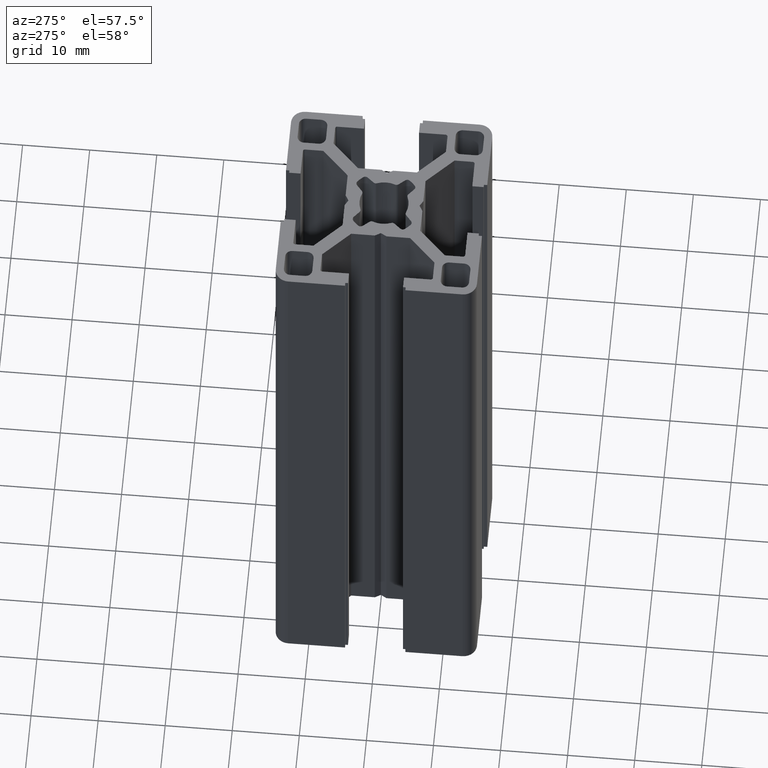
[diagram: clean part render]
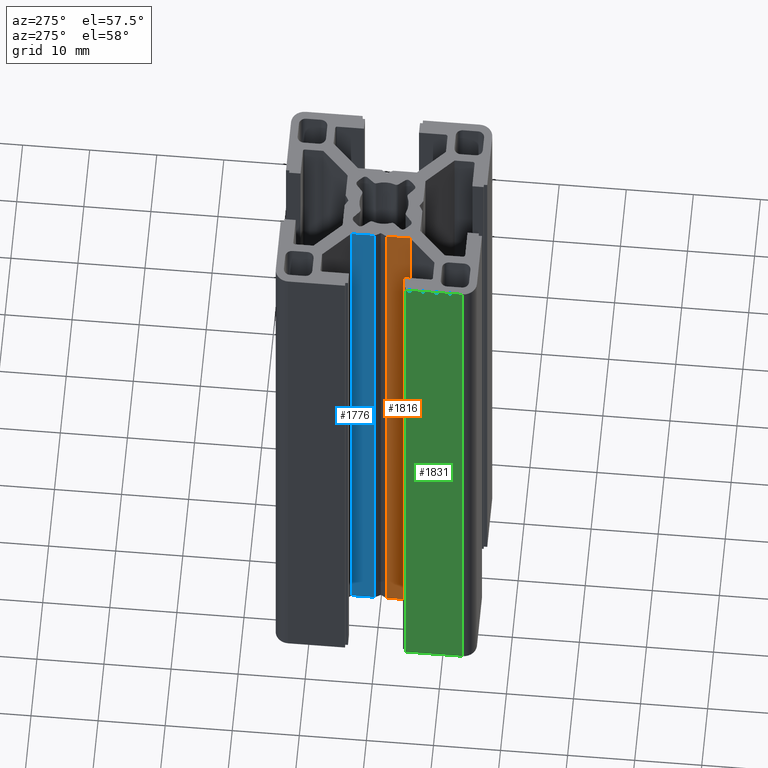
[diagram: same view with three faces highlighted in distinct colors, each labeled with its STEP entity id]
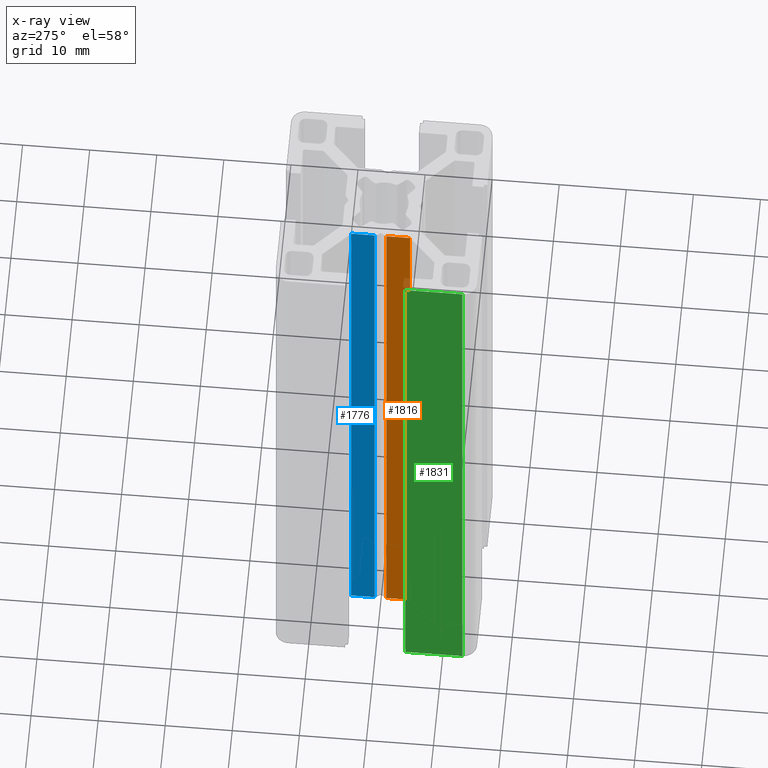
[diagram: x-ray of the same camera — body ghosted, the three highlighted faces saturated]
A machine part, auxiliary view with three faces highlighted in distinct colors.
The next image is the same camera in x-ray (body ghosted, the three faces saturated) — at least one of them is partly hidden behind the body in this view.
Their STEP definitions:

[orange] entity #1816 — the highlighted planar face has unit normal (1, 0, -0).
#1043 = VERTEX_POINT ( 'NONE', #3101 ) ;
#1057 = EDGE_CURVE ( 'NONE', #1043, #1106, #3129, .T. ) ;
#1106 = VERTEX_POINT ( 'NONE', #3167 ) ;
#1233 = VERTEX_POINT ( 'NONE', #3389 ) ;
#1268 = VERTEX_POINT ( 'NONE', #3428 ) ;
#1304 = EDGE_CURVE ( 'NONE', #1268, #1233, #3524, .T. ) ;
#1769 = EDGE_LOOP ( 'NONE', ( #1817, #1815, #1797, #1798 ) ) ;
#1797 = ORIENTED_EDGE ( 'NONE', *, *, #1057, .F. ) ;
#1798 = ORIENTED_EDGE ( 'NONE', *, *, #1810, .T. ) ;
#1810 = EDGE_CURVE ( 'NONE', #1043, #1268, #4370, .T. ) ;
#1814 = EDGE_CURVE ( 'NONE', #1106, #1233, #4411, .T. ) ;
#1815 = ORIENTED_EDGE ( 'NONE', *, *, #1814, .F. ) ;
#1816 = ADVANCED_FACE ( 'NONE', ( #4376 ), #4405, .F. ) ;
#1817 = ORIENTED_EDGE ( 'NONE', *, *, #1304, .T. ) ;
#3101 = CARTESIAN_POINT ( 'NONE',  ( -5.800000000000000700, -0.8660254037844389300, 100.0000000000000000 ) ) ;
#3126 = DIRECTION ( 'NONE',  ( 0.0000000000000000000, -1.000000000000000000, 0.0000000000000000000 ) ) ;
#3127 = VECTOR ( 'NONE', #3126, 1000.000000000000000 ) ;
#3128 = CARTESIAN_POINT ( 'NONE',  ( -5.800000000000000700, -0.8660254037844389300, 100.0000000000000000 ) ) ;
#3129 = LINE ( 'NONE', #3128, #3127 ) ;
#3167 = CARTESIAN_POINT ( 'NONE',  ( -5.800000000000000700, -4.385786437626901300, 100.0000000000000000 ) ) ;
#3389 = CARTESIAN_POINT ( 'NONE',  ( -5.800000000000000700, -4.385786437626901300, 0.0000000000000000000 ) ) ;
#3428 = CARTESIAN_POINT ( 'NONE',  ( -5.800000000000000700, -0.8660254037844389300, 0.0000000000000000000 ) ) ;
#3521 = DIRECTION ( 'NONE',  ( 0.0000000000000000000, -1.000000000000000000, 0.0000000000000000000 ) ) ;
#3522 = VECTOR ( 'NONE', #3521, 1000.000000000000000 ) ;
#3523 = CARTESIAN_POINT ( 'NONE',  ( -5.800000000000000700, -0.8660254037844389300, 0.0000000000000000000 ) ) ;
#3524 = LINE ( 'NONE', #3523, #3522 ) ;
#4370 = LINE ( 'NONE', #4414, #4413 ) ;
#4371 = AXIS2_PLACEMENT_3D ( 'NONE', #4403, #4402, #4401 ) ;
#4376 = FACE_OUTER_BOUND ( 'NONE', #1769, .T. ) ;
#4401 = DIRECTION ( 'NONE',  ( -0.0000000000000000000, 0.0000000000000000000, -1.000000000000000000 ) ) ;
#4402 = DIRECTION ( 'NONE',  ( 1.000000000000000000, 0.0000000000000000000, -0.0000000000000000000 ) ) ;
#4403 = CARTESIAN_POINT ( 'NONE',  ( -5.800000000000000700, -0.8660254037844389300, 100.0000000000000000 ) ) ;
#4405 = PLANE ( 'NONE',  #4371 ) ;
#4406 = DIRECTION ( 'NONE',  ( -0.0000000000000000000, -0.0000000000000000000, -1.000000000000000000 ) ) ;
#4407 = VECTOR ( 'NONE', #4406, 1000.000000000000000 ) ;
#4408 = CARTESIAN_POINT ( 'NONE',  ( -5.800000000000000700, -4.385786437626901300, 100.0000000000000000 ) ) ;
#4411 = LINE ( 'NONE', #4408, #4407 ) ;
#4412 = DIRECTION ( 'NONE',  ( -0.0000000000000000000, -0.0000000000000000000, -1.000000000000000000 ) ) ;
#4413 = VECTOR ( 'NONE', #4412, 1000.000000000000000 ) ;
#4414 = CARTESIAN_POINT ( 'NONE',  ( -5.800000000000000700, -0.8660254037844389300, 100.0000000000000000 ) ) ;

[blue] entity #1776 — the highlighted planar face has unit normal (1, 0, -0).
#1039 = VERTEX_POINT ( 'NONE', #3109 ) ;
#1058 = VERTEX_POINT ( 'NONE', #3131 ) ;
#1105 = EDGE_CURVE ( 'NONE', #1058, #1039, #3218, .T. ) ;
#1293 = EDGE_CURVE ( 'NONE', #1296, #1300, #3485, .T. ) ;
#1296 = VERTEX_POINT ( 'NONE', #3538 ) ;
#1300 = VERTEX_POINT ( 'NONE', #3534 ) ;
#1765 = EDGE_CURVE ( 'NONE', #1058, #1296, #4359, .T. ) ;
#1766 = EDGE_CURVE ( 'NONE', #1039, #1300, #4355, .T. ) ;
#1771 = EDGE_LOOP ( 'NONE', ( #1819, #1775, #1821, #1824 ) ) ;
#1775 = ORIENTED_EDGE ( 'NONE', *, *, #1766, .F. ) ;
#1776 = ADVANCED_FACE ( 'NONE', ( #4365 ), #4366, .F. ) ;
#1819 = ORIENTED_EDGE ( 'NONE', *, *, #1293, .T. ) ;
#1821 = ORIENTED_EDGE ( 'NONE', *, *, #1105, .F. ) ;
#1824 = ORIENTED_EDGE ( 'NONE', *, *, #1765, .T. ) ;
#3109 = CARTESIAN_POINT ( 'NONE',  ( -5.800000000000000700, 0.8660254037844402600, 100.0000000000000000 ) ) ;
#3131 = CARTESIAN_POINT ( 'NONE',  ( -5.800000000000000700, 4.385786437626901300, 100.0000000000000000 ) ) ;
#3215 = DIRECTION ( 'NONE',  ( 0.0000000000000000000, -1.000000000000000000, 0.0000000000000000000 ) ) ;
#3216 = VECTOR ( 'NONE', #3215, 1000.000000000000000 ) ;
#3217 = CARTESIAN_POINT ( 'NONE',  ( -5.800000000000000700, 4.385786437626901300, 100.0000000000000000 ) ) ;
#3218 = LINE ( 'NONE', #3217, #3216 ) ;
#3482 = DIRECTION ( 'NONE',  ( 0.0000000000000000000, -1.000000000000000000, 0.0000000000000000000 ) ) ;
#3483 = VECTOR ( 'NONE', #3482, 1000.000000000000000 ) ;
#3484 = CARTESIAN_POINT ( 'NONE',  ( -5.800000000000000700, 4.385786437626901300, 0.0000000000000000000 ) ) ;
#3485 = LINE ( 'NONE', #3484, #3483 ) ;
#3534 = CARTESIAN_POINT ( 'NONE',  ( -5.800000000000000700, 0.8660254037844402600, 0.0000000000000000000 ) ) ;
#3538 = CARTESIAN_POINT ( 'NONE',  ( -5.800000000000000700, 4.385786437626901300, 0.0000000000000000000 ) ) ;
#4286 = CARTESIAN_POINT ( 'NONE',  ( -5.800000000000000700, 4.385786437626901300, 100.0000000000000000 ) ) ;
#4346 = DIRECTION ( 'NONE',  ( -0.0000000000000000000, 0.0000000000000000000, -1.000000000000000000 ) ) ;
#4347 = DIRECTION ( 'NONE',  ( 1.000000000000000000, 0.0000000000000000000, -0.0000000000000000000 ) ) ;
#4352 = DIRECTION ( 'NONE',  ( -0.0000000000000000000, -0.0000000000000000000, -1.000000000000000000 ) ) ;
#4353 = VECTOR ( 'NONE', #4352, 1000.000000000000000 ) ;
#4354 = CARTESIAN_POINT ( 'NONE',  ( -5.800000000000000700, 0.8660254037844402600, 100.0000000000000000 ) ) ;
#4355 = LINE ( 'NONE', #4354, #4353 ) ;
#4356 = DIRECTION ( 'NONE',  ( -0.0000000000000000000, -0.0000000000000000000, -1.000000000000000000 ) ) ;
#4357 = VECTOR ( 'NONE', #4356, 1000.000000000000000 ) ;
#4358 = CARTESIAN_POINT ( 'NONE',  ( -5.800000000000000700, 4.385786437626901300, 100.0000000000000000 ) ) ;
#4359 = LINE ( 'NONE', #4358, #4357 ) ;
#4361 = AXIS2_PLACEMENT_3D ( 'NONE', #4286, #4347, #4346 ) ;
#4365 = FACE_OUTER_BOUND ( 'NONE', #1771, .T. ) ;
#4366 = PLANE ( 'NONE',  #4361 ) ;

[green] entity #1831 — the highlighted planar face has unit normal (1, 0, 0).
#1121 = VERTEX_POINT ( 'NONE', #3251 ) ;
#1145 = VERTEX_POINT ( 'NONE', #3268 ) ;
#1146 = EDGE_CURVE ( 'NONE', #1121, #1145, #3257, .T. ) ;
#1253 = VERTEX_POINT ( 'NONE', #3433 ) ;
#1269 = VERTEX_POINT ( 'NONE', #3468 ) ;
#1313 = EDGE_CURVE ( 'NONE', #1269, #1253, #3550, .T. ) ;
#1830 = ORIENTED_EDGE ( 'NONE', *, *, #1917, .F. ) ;
#1831 = ADVANCED_FACE ( 'NONE', ( #4415 ), #4404, .F. ) ;
#1832 = ORIENTED_EDGE ( 'NONE', *, *, #1313, .T. ) ;
#1840 = EDGE_LOOP ( 'NONE', ( #1832, #1830, #1920, #1925 ) ) ;
#1852 = EDGE_CURVE ( 'NONE', #1121, #1269, #4470, .T. ) ;
#1917 = EDGE_CURVE ( 'NONE', #1145, #1253, #4593, .T. ) ;
#1920 = ORIENTED_EDGE ( 'NONE', *, *, #1146, .F. ) ;
#1925 = ORIENTED_EDGE ( 'NONE', *, *, #1852, .T. ) ;
#3251 = CARTESIAN_POINT ( 'NONE',  ( -15.00000000000000000, -4.500000000000000900, 100.0000000000000000 ) ) ;
#3254 = DIRECTION ( 'NONE',  ( -0.0000000000000000000, -1.000000000000000000, -0.0000000000000000000 ) ) ;
#3255 = VECTOR ( 'NONE', #3254, 1000.000000000000000 ) ;
#3256 = CARTESIAN_POINT ( 'NONE',  ( -15.00000000000000000, -13.00000000000000200, 100.0000000000000000 ) ) ;
#3257 = LINE ( 'NONE', #3256, #3255 ) ;
#3268 = CARTESIAN_POINT ( 'NONE',  ( -15.00000000000000000, -13.00000000000000200, 100.0000000000000000 ) ) ;
#3433 = CARTESIAN_POINT ( 'NONE',  ( -15.00000000000000000, -13.00000000000000200, 0.0000000000000000000 ) ) ;
#3468 = CARTESIAN_POINT ( 'NONE',  ( -15.00000000000000000, -4.500000000000000900, 0.0000000000000000000 ) ) ;
#3547 = DIRECTION ( 'NONE',  ( -0.0000000000000000000, -1.000000000000000000, -0.0000000000000000000 ) ) ;
#3548 = VECTOR ( 'NONE', #3547, 1000.000000000000000 ) ;
#3549 = CARTESIAN_POINT ( 'NONE',  ( -15.00000000000000000, -13.00000000000000200, 0.0000000000000000000 ) ) ;
#3550 = LINE ( 'NONE', #3549, #3548 ) ;
#4404 = PLANE ( 'NONE',  #4409 ) ;
#4409 = AXIS2_PLACEMENT_3D ( 'NONE', #4454, #4453, #4452 ) ;
#4415 = FACE_OUTER_BOUND ( 'NONE', #1840, .T. ) ;
#4452 = DIRECTION ( 'NONE',  ( 0.0000000000000000000, 0.0000000000000000000, -1.000000000000000000 ) ) ;
#4453 = DIRECTION ( 'NONE',  ( 1.000000000000000000, 0.0000000000000000000, 0.0000000000000000000 ) ) ;
#4454 = CARTESIAN_POINT ( 'NONE',  ( -15.00000000000000000, -13.00000000000000200, 100.0000000000000000 ) ) ;
#4464 = DIRECTION ( 'NONE',  ( -0.0000000000000000000, -0.0000000000000000000, -1.000000000000000000 ) ) ;
#4465 = VECTOR ( 'NONE', #4464, 1000.000000000000000 ) ;
#4466 = CARTESIAN_POINT ( 'NONE',  ( -15.00000000000000000, -4.500000000000000900, 100.0000000000000000 ) ) ;
#4470 = LINE ( 'NONE', #4466, #4465 ) ;
#4590 = DIRECTION ( 'NONE',  ( -0.0000000000000000000, -0.0000000000000000000, -1.000000000000000000 ) ) ;
#4591 = VECTOR ( 'NONE', #4590, 1000.000000000000000 ) ;
#4592 = CARTESIAN_POINT ( 'NONE',  ( -15.00000000000000000, -13.00000000000000200, 100.0000000000000000 ) ) ;
#4593 = LINE ( 'NONE', #4592, #4591 ) ;